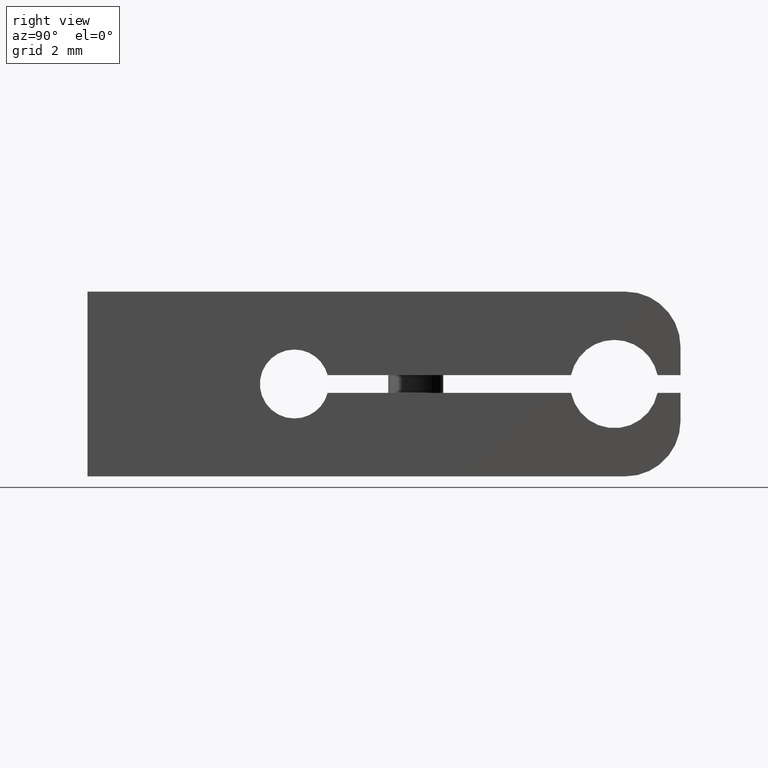
[diagram: clean part render]
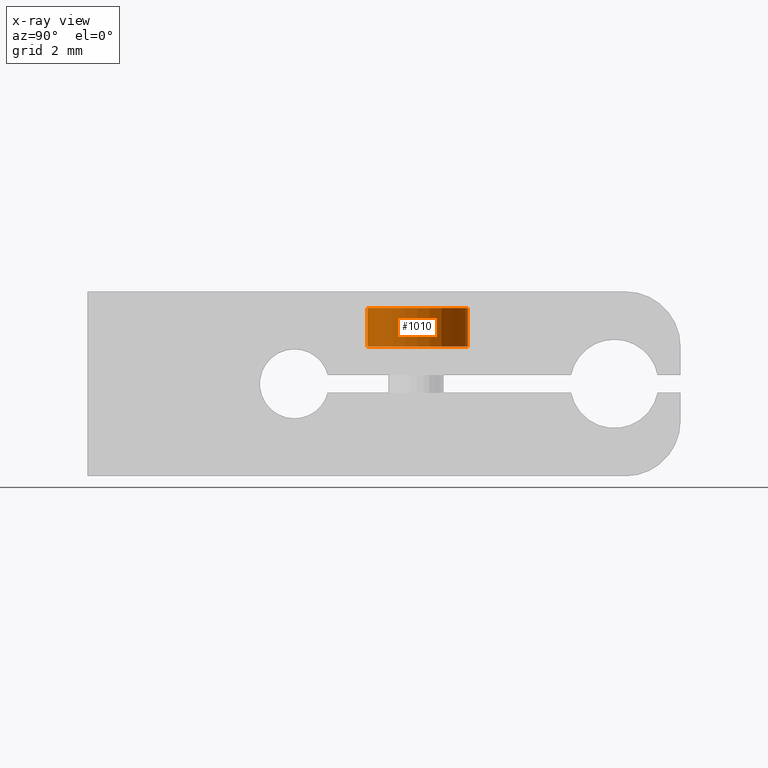
[diagram: x-ray — body ghosted, one internal face saturated and labeled with its STEP entity id]
A machine part, right view, then the same camera in x-ray: the body is ghosted and one INTERNAL B-rep face — a face not visible from any outside direction — is saturated and labeled: STEP entity #1010.
In plain terms, the highlighted cylindrical surface (partial cylindrical patch) has radius 1.9 mm, axis along (0, 0, -1).
Its self-contained STEP definition (entity closure, byte-faithful):
#40 = VERTEX_POINT ( 'NONE', #1145 ) ;
#149 = CARTESIAN_POINT ( 'NONE',  ( -1.054711873393889420E-16, 1.700000000000000178, -1.899999999999999689 ) ) ;
#221 = EDGE_LOOP ( 'NONE', ( #1035, #2107, #1123, #1745 ) ) ;
#276 = DIRECTION ( 'NONE',  ( -5.551115123125734015E-17, 0.000000000000000000, -1.000000000000000000 ) ) ;
#297 = CARTESIAN_POINT ( 'NONE',  ( -1.054711873393898541E-16, 1.999999999999998224, -1.900000000000016342 ) ) ;
#354 = CIRCLE ( 'NONE', #1269, 1.900000000000016342 ) ;
#428 = CARTESIAN_POINT ( 'NONE',  ( 0.000000000000000000, 1.999999999999998224, 0.000000000000000000 ) ) ;
#456 = CIRCLE ( 'NONE', #598, 1.900000000000016342 ) ;
#461 = EDGE_CURVE ( 'NONE', #2132, #1672, #1311, .T. ) ;
#527 = EDGE_CURVE ( 'NONE', #600, #40, #1209, .T. ) ;
#598 = AXIS2_PLACEMENT_3D ( 'NONE', #1830, #934, #1783 ) ;
#600 = VERTEX_POINT ( 'NONE', #1238 ) ;
#611 = CARTESIAN_POINT ( 'NONE',  ( 0.000000000000000000, 0.2999999999999981570, 0.000000000000000000 ) ) ;
#620 = AXIS2_PLACEMENT_3D ( 'NONE', #428, #1789, #276 ) ;
#679 = CARTESIAN_POINT ( 'NONE',  ( 3.381540791773889504E-16, 1.999999999999998224, 1.900000000000016342 ) ) ;
#934 = DIRECTION ( 'NONE',  ( -0.000000000000000000, -1.000000000000000000, -0.000000000000000000 ) ) ;
#1010 = ADVANCED_FACE ( 'NONE', ( #1107 ), #2081, .T. ) ;
#1035 = ORIENTED_EDGE ( 'NONE', *, *, #1732, .T. ) ;
#1107 = FACE_OUTER_BOUND ( 'NONE', #221, .T. ) ;
#1111 = CARTESIAN_POINT ( 'NONE',  ( -1.054711873393889420E-16, 0.2999999999999981570, -1.899999999999999689 ) ) ;
#1123 = ORIENTED_EDGE ( 'NONE', *, *, #1637, .T. ) ;
#1145 = CARTESIAN_POINT ( 'NONE',  ( 3.381540791773859922E-16, 0.2999999999999981570, 1.899999999999999689 ) ) ;
#1209 = LINE ( 'NONE', #679, #1457 ) ;
#1238 = CARTESIAN_POINT ( 'NONE',  ( 3.381540791773859922E-16, 1.700000000000000178, 1.899999999999999689 ) ) ;
#1269 = AXIS2_PLACEMENT_3D ( 'NONE', #611, #2138, #1464 ) ;
#1311 = LINE ( 'NONE', #297, #1420 ) ;
#1420 = VECTOR ( 'NONE', #1974, 1000.000000000000000 ) ;
#1457 = VECTOR ( 'NONE', #1887, 1000.000000000000000 ) ;
#1464 = DIRECTION ( 'NONE',  ( 5.551115123125734015E-17, 0.000000000000000000, 1.000000000000000000 ) ) ;
#1637 = EDGE_CURVE ( 'NONE', #40, #1672, #354, .T. ) ;
#1672 = VERTEX_POINT ( 'NONE', #1111 ) ;
#1732 = EDGE_CURVE ( 'NONE', #2132, #600, #456, .T. ) ;
#1745 = ORIENTED_EDGE ( 'NONE', *, *, #461, .F. ) ;
#1783 = DIRECTION ( 'NONE',  ( 5.551115123125734015E-17, 0.000000000000000000, 1.000000000000000000 ) ) ;
#1789 = DIRECTION ( 'NONE',  ( 0.000000000000000000, -1.000000000000000000, 0.000000000000000000 ) ) ;
#1830 = CARTESIAN_POINT ( 'NONE',  ( 0.000000000000000000, 1.700000000000000178, 0.000000000000000000 ) ) ;
#1887 = DIRECTION ( 'NONE',  ( 0.000000000000000000, -1.000000000000000000, 0.000000000000000000 ) ) ;
#1974 = DIRECTION ( 'NONE',  ( 0.000000000000000000, -1.000000000000000000, 0.000000000000000000 ) ) ;
#2081 = CYLINDRICAL_SURFACE ( 'NONE', #620, 1.900000000000016342 ) ;
#2107 = ORIENTED_EDGE ( 'NONE', *, *, #527, .T. ) ;
#2132 = VERTEX_POINT ( 'NONE', #149 ) ;
#2138 = DIRECTION ( 'NONE',  ( 0.000000000000000000, 1.000000000000000000, 0.000000000000000000 ) ) ;